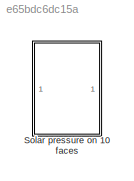
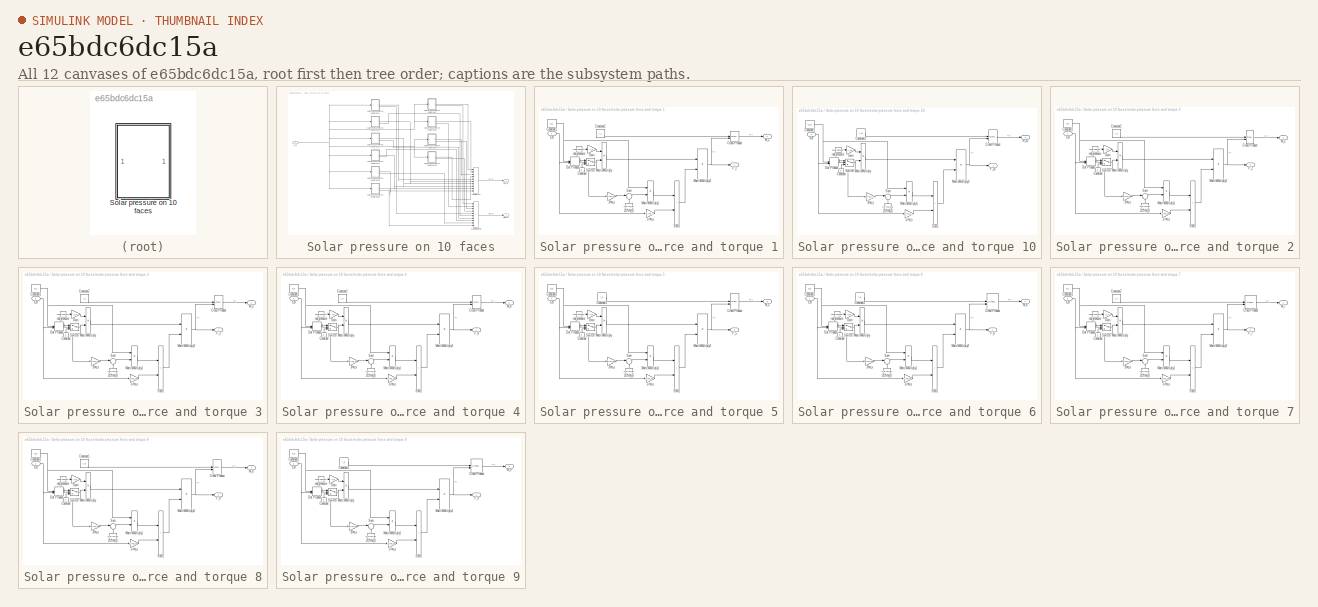
[diagram: thumbnail index - all 12 canvases of the model, root first then tree order]
MODEL slx_e65bdc6dc15a
KIND model
CONFIG AbsTol = auto
CONFIG EnableMultiTasking = off
CONFIG FixedStep = auto
CONFIG MaxStep = auto
CONFIG MinStep = auto
CONFIG RelTol = 1e-3
CONFIG SampleTimeConstraint = Unconstrained
CONFIG SolverName = VariableStepAuto
CONFIG StartTime = 0.0
CONFIG StopTime = 10.0
BLOCK [SubSystem] Solar pressure on 10 faces
BLOCK [Outport] Solar pressure on 10 faces/Ftot_SP
BLOCK [Outport] Solar pressure on 10 faces/Mtot_SP
  Port = 2
BLOCK [Inport] Solar pressure on 10 faces/S_B
BLOCK [Sum] Solar pressure on 10 faces/Sum of forces
  IconShape = rectangular
  Inputs = ++++++++++
BLOCK [Sum] Solar pressure on 10 faces/Sum of moments
  IconShape = rectangular
  Inputs = ++++++++++
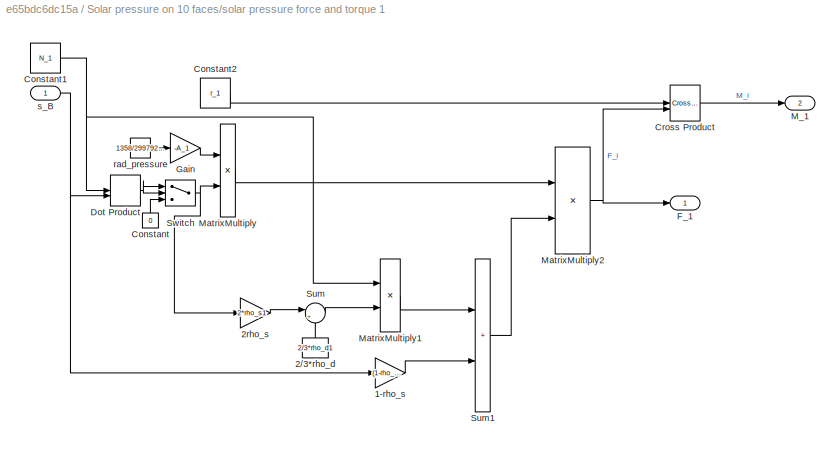
BLOCK [SubSystem] Solar pressure on 10 faces/solar pressure force and torque 1
BLOCK [Gain] Solar pressure on 10 faces/solar pressure force and torque 1/1-rho_s
  Gain = (1-rho_s1)
BLOCK [Constant] Solar pressure on 10 faces/solar pressure force and torque 1/2//3*rho_d
  NameLocation = right
  Value = 2/3*rho_d1
BLOCK [Gain] Solar pressure on 10 faces/solar pressure force and torque 1/2rho_s
  Gain = 2*rho_s1
BLOCK [Constant] Solar pressure on 10 faces/solar pressure force and torque 1/Constant
  NameLocation = right
  Value = 0
BLOCK [Constant] Solar pressure on 10 faces/solar pressure force and torque 1/Constant1
  Value = N_1
BLOCK [Constant] Solar pressure on 10 faces/solar pressure force and torque 1/Constant2
  Value = r_1
BLOCK [Reference] Solar pressure on 10 faces/solar pressure force and torque 1/Cross Product  REF=matrix_library/Cross Product
  LibrarySourceBlock = simulink/Matrix\nOperations/Cross Product
  SourceBlock = matrix_library/Cross Product
  SourceType = CrossProduct
BLOCK [DotProduct] Solar pressure on 10 faces/solar pressure force and torque 1/Dot Product
  OutDataTypeStr = Inherit: Inherit via internal rule
BLOCK [Outport] Solar pressure on 10 faces/solar pressure force and torque 1/F_1
BLOCK [Gain] Solar pressure on 10 faces/solar pressure force and torque 1/Gain
  Gain = -A_1
BLOCK [Outport] Solar pressure on 10 faces/solar pressure force and torque 1/M_1
  Port = 2
BLOCK [Product] Solar pressure on 10 faces/solar pressure force and torque 1/MatrixMultiply
BLOCK [Product] Solar pressure on 10 faces/solar pressure force and torque 1/MatrixMultiply1
BLOCK [Product] Solar pressure on 10 faces/solar pressure force and torque 1/MatrixMultiply2
BLOCK [Sum] Solar pressure on 10 faces/solar pressure force and torque 1/Sum
  Inputs = |++
BLOCK [Sum] Solar pressure on 10 faces/solar pressure force and torque 1/Sum1
  IconShape = rectangular
BLOCK [Switch] Solar pressure on 10 faces/solar pressure force and torque 1/Switch
  Criteria = u2 > Threshold
  InputSameDT = off
  SaturateOnIntegerOverflow = off
BLOCK [Constant] Solar pressure on 10 faces/solar pressure force and torque 1/rad_pressure
  Value = 1358/299792458
BLOCK [Inport] Solar pressure on 10 faces/solar pressure force and torque 1/s_B
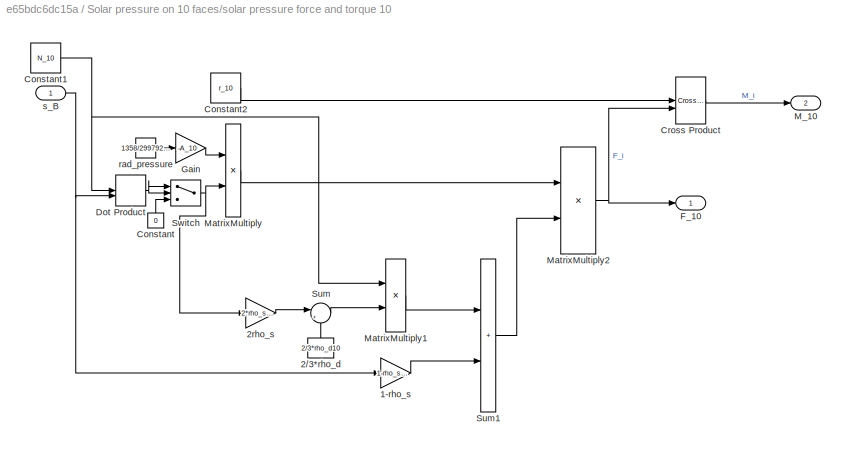
BLOCK [SubSystem] Solar pressure on 10 faces/solar pressure force and torque 10
BLOCK [Gain] Solar pressure on 10 faces/solar pressure force and torque 10/1-rho_s
  Gain = 1-rho_s10
BLOCK [Constant] Solar pressure on 10 faces/solar pressure force and torque 10/2//3*rho_d
  NameLocation = right
  Value = 2/3*rho_d10
BLOCK [Gain] Solar pressure on 10 faces/solar pressure force and torque 10/2rho_s
  Gain = 2*rho_s10
BLOCK [Constant] Solar pressure on 10 faces/solar pressure force and torque 10/Constant
  NameLocation = right
  Value = 0
BLOCK [Constant] Solar pressure on 10 faces/solar pressure force and torque 10/Constant1
  Value = N_10
BLOCK [Constant] Solar pressure on 10 faces/solar pressure force and torque 10/Constant2
  Value = r_10
BLOCK [Reference] Solar pressure on 10 faces/solar pressure force and torque 10/Cross Product  REF=matrix_library/Cross Product
  LibrarySourceBlock = simulink/Matrix\nOperations/Cross Product
  SourceBlock = matrix_library/Cross Product
  SourceType = CrossProduct
BLOCK [DotProduct] Solar pressure on 10 faces/solar pressure force and torque 10/Dot Product
  OutDataTypeStr = Inherit: Inherit via internal rule
BLOCK [Outport] Solar pressure on 10 faces/solar pressure force and torque 10/F_10
BLOCK [Gain] Solar pressure on 10 faces/solar pressure force and torque 10/Gain
  Gain = -A_10
BLOCK [Outport] Solar pressure on 10 faces/solar pressure force and torque 10/M_10
  Port = 2
BLOCK [Product] Solar pressure on 10 faces/solar pressure force and torque 10/MatrixMultiply
BLOCK [Product] Solar pressure on 10 faces/solar pressure force and torque 10/MatrixMultiply1
BLOCK [Product] Solar pressure on 10 faces/solar pressure force and torque 10/MatrixMultiply2
BLOCK [Sum] Solar pressure on 10 faces/solar pressure force and torque 10/Sum
  Inputs = |++
BLOCK [Sum] Solar pressure on 10 faces/solar pressure force and torque 10/Sum1
  IconShape = rectangular
BLOCK [Switch] Solar pressure on 10 faces/solar pressure force and torque 10/Switch
  Criteria = u2 > Threshold
  InputSameDT = off
  SaturateOnIntegerOverflow = off
BLOCK [Constant] Solar pressure on 10 faces/solar pressure force and torque 10/rad_pressure
  Value = 1358/299792458
BLOCK [Inport] Solar pressure on 10 faces/solar pressure force and torque 10/s_B
BLOCK [SubSystem] Solar pressure on 10 faces/solar pressure force and torque 2
BLOCK [Gain] Solar pressure on 10 faces/solar pressure force and torque 2/1-rho_s
  Gain = 1-rho_s2
BLOCK [Constant] Solar pressure on 10 faces/solar pressure force and torque 2/2//3*rho_d
  NameLocation = right
  Value = 2/3*rho_d2
BLOCK [Gain] Solar pressure on 10 faces/solar pressure force and torque 2/2rho_s
  Gain = 2*rho_s2
BLOCK [Constant] Solar pressure on 10 faces/solar pressure force and torque 2/Constant
  NameLocation = right
  Value = 0
BLOCK [Constant] Solar pressure on 10 faces/solar pressure force and torque 2/Constant1
  Value = N_2
BLOCK [Constant] Solar pressure on 10 faces/solar pressure force and torque 2/Constant2
  Value = r_2
BLOCK [Reference] Solar pressure on 10 faces/solar pressure force and torque 2/Cross Product  REF=matrix_library/Cross Product
  LibrarySourceBlock = simulink/Matrix\nOperations/Cross Product
  SourceBlock = matrix_library/Cross Product
  SourceType = CrossProduct
BLOCK [DotProduct] Solar pressure on 10 faces/solar pressure force and torque 2/Dot Product
  OutDataTypeStr = Inherit: Inherit via internal rule
BLOCK [Outport] Solar pressure on 10 faces/solar pressure force and torque 2/F_2
BLOCK [Gain] Solar pressure on 10 faces/solar pressure force and torque 2/Gain
  Gain = -A_2
BLOCK [Outport] Solar pressure on 10 faces/solar pressure force and torque 2/M_2
  Port = 2
BLOCK [Product] Solar pressure on 10 faces/solar pressure force and torque 2/MatrixMultiply
BLOCK [Product] Solar pressure on 10 faces/solar pressure force and torque 2/MatrixMultiply1
BLOCK [Product] Solar pressure on 10 faces/solar pressure force and torque 2/MatrixMultiply2
BLOCK [Sum] Solar pressure on 10 faces/solar pressure force and torque 2/Sum
  Inputs = |++
BLOCK [Sum] Solar pressure on 10 faces/solar pressure force and torque 2/Sum1
  IconShape = rectangular
BLOCK [Switch] Solar pressure on 10 faces/solar pressure force and torque 2/Switch
  Criteria = u2 > Threshold
  InputSameDT = off
  SaturateOnIntegerOverflow = off
BLOCK [Constant] Solar pressure on 10 faces/solar pressure force and torque 2/rad_pressure
  Value = 1358/299792458
BLOCK [Inport] Solar pressure on 10 faces/solar pressure force and torque 2/s_B
BLOCK [SubSystem] Solar pressure on 10 faces/solar pressure force and torque 3
BLOCK [Gain] Solar pressure on 10 faces/solar pressure force and torque 3/1-rho_s
  Gain = 1-rho_s3
BLOCK [Constant] Solar pressure on 10 faces/solar pressure force and torque 3/2//3*rho_d
  NameLocation = right
  Value = 2/3*rho_d3
BLOCK [Gain] Solar pressure on 10 faces/solar pressure force and torque 3/2rho_s
  Gain = 2*rho_s3
BLOCK [Constant] Solar pressure on 10 faces/solar pressure force and torque 3/Constant
  NameLocation = right
  Value = 0
BLOCK [Constant] Solar pressure on 10 faces/solar pressure force and torque 3/Constant1
  Value = N_3
BLOCK [Constant] Solar pressure on 10 faces/solar pressure force and torque 3/Constant2
  Value = r_3
BLOCK [Reference] Solar pressure on 10 faces/solar pressure force and torque 3/Cross Product  REF=matrix_library/Cross Product
  LibrarySourceBlock = simulink/Matrix\nOperations/Cross Product
  SourceBlock = matrix_library/Cross Product
  SourceType = CrossProduct
BLOCK [DotProduct] Solar pressure on 10 faces/solar pressure force and torque 3/Dot Product
  OutDataTypeStr = Inherit: Inherit via internal rule
BLOCK [Outport] Solar pressure on 10 faces/solar pressure force and torque 3/F_3
BLOCK [Gain] Solar pressure on 10 faces/solar pressure force and torque 3/Gain
  Gain = -A_3
BLOCK [Outport] Solar pressure on 10 faces/solar pressure force and torque 3/M_3
  Port = 2
BLOCK [Product] Solar pressure on 10 faces/solar pressure force and torque 3/MatrixMultiply
BLOCK [Product] Solar pressure on 10 faces/solar pressure force and torque 3/MatrixMultiply1
BLOCK [Product] Solar pressure on 10 faces/solar pressure force and torque 3/MatrixMultiply2
BLOCK [Sum] Solar pressure on 10 faces/solar pressure force and torque 3/Sum
  Inputs = |++
BLOCK [Sum] Solar pressure on 10 faces/solar pressure force and torque 3/Sum1
  IconShape = rectangular
BLOCK [Switch] Solar pressure on 10 faces/solar pressure force and torque 3/Switch
  Criteria = u2 > Threshold
  InputSameDT = off
  SaturateOnIntegerOverflow = off
BLOCK [Constant] Solar pressure on 10 faces/solar pressure force and torque 3/rad_pressure
  Value = 1358/299792458
BLOCK [Inport] Solar pressure on 10 faces/solar pressure force and torque 3/s_B
BLOCK [SubSystem] Solar pressure on 10 faces/solar pressure force and torque 4
BLOCK [Gain] Solar pressure on 10 faces/solar pressure force and torque 4/1-rho_s
  Gain = 1-rho_s4
BLOCK [Constant] Solar pressure on 10 faces/solar pressure force and torque 4/2//3*rho_d
  NameLocation = right
  Value = 2/3*rho_d4
BLOCK [Gain] Solar pressure on 10 faces/solar pressure force and torque 4/2rho_s
  Gain = 2*rho_s4
BLOCK [Constant] Solar pressure on 10 faces/solar pressure force and torque 4/Constant
  NameLocation = right
  Value = 0
BLOCK [Constant] Solar pressure on 10 faces/solar pressure force and torque 4/Constant1
  Value = N_4
BLOCK [Constant] Solar pressure on 10 faces/solar pressure force and torque 4/Constant2
  Value = r_4
BLOCK [Reference] Solar pressure on 10 faces/solar pressure force and torque 4/Cross Product  REF=matrix_library/Cross Product
  LibrarySourceBlock = simulink/Matrix\nOperations/Cross Product
  SourceBlock = matrix_library/Cross Product
  SourceType = CrossProduct
BLOCK [DotProduct] Solar pressure on 10 faces/solar pressure force and torque 4/Dot Product
  OutDataTypeStr = Inherit: Inherit via internal rule
BLOCK [Outport] Solar pressure on 10 faces/solar pressure force and torque 4/F_4
BLOCK [Gain] Solar pressure on 10 faces/solar pressure force and torque 4/Gain
  Gain = -A_4
BLOCK [Outport] Solar pressure on 10 faces/solar pressure force and torque 4/M_4
  Port = 2
BLOCK [Product] Solar pressure on 10 faces/solar pressure force and torque 4/MatrixMultiply
BLOCK [Product] Solar pressure on 10 faces/solar pressure force and torque 4/MatrixMultiply1
BLOCK [Product] Solar pressure on 10 faces/solar pressure force and torque 4/MatrixMultiply2
BLOCK [Sum] Solar pressure on 10 faces/solar pressure force and torque 4/Sum
  Inputs = |++
BLOCK [Sum] Solar pressure on 10 faces/solar pressure force and torque 4/Sum1
  IconShape = rectangular
BLOCK [Switch] Solar pressure on 10 faces/solar pressure force and torque 4/Switch
  Criteria = u2 > Threshold
  InputSameDT = off
  SaturateOnIntegerOverflow = off
BLOCK [Constant] Solar pressure on 10 faces/solar pressure force and torque 4/rad_pressure
  Value = 1358/299792458
BLOCK [Inport] Solar pressure on 10 faces/solar pressure force and torque 4/s_B
BLOCK [SubSystem] Solar pressure on 10 faces/solar pressure force and torque 5
BLOCK [Gain] Solar pressure on 10 faces/solar pressure force and torque 5/1-rho_s
  Gain = 1-rho_s5
BLOCK [Constant] Solar pressure on 10 faces/solar pressure force and torque 5/2//3*rho_d
  NameLocation = right
  Value = 2/3*rho_d5
BLOCK [Gain] Solar pressure on 10 faces/solar pressure force and torque 5/2rho_s
  Gain = 2*rho_s5
BLOCK [Constant] Solar pressure on 10 faces/solar pressure force and torque 5/Constant
  NameLocation = right
  Value = 0
BLOCK [Constant] Solar pressure on 10 faces/solar pressure force and torque 5/Constant1
  Value = r_5
BLOCK [Constant] Solar pressure on 10 faces/solar pressure force and torque 5/Constant2
  Value = N_5
BLOCK [Reference] Solar pressure on 10 faces/solar pressure force and torque 5/Cross Product  REF=matrix_library/Cross Product
  LibrarySourceBlock = simulink/Matrix\nOperations/Cross Product
  SourceBlock = matrix_library/Cross Product
  SourceType = CrossProduct
BLOCK [DotProduct] Solar pressure on 10 faces/solar pressure force and torque 5/Dot Product
  OutDataTypeStr = Inherit: Inherit via internal rule
BLOCK [Outport] Solar pressure on 10 faces/solar pressure force and torque 5/F_5
BLOCK [Gain] Solar pressure on 10 faces/solar pressure force and torque 5/Gain
  Gain = -A_5
BLOCK [Outport] Solar pressure on 10 faces/solar pressure force and torque 5/M_5
  Port = 2
BLOCK [Product] Solar pressure on 10 faces/solar pressure force and torque 5/MatrixMultiply
BLOCK [Product] Solar pressure on 10 faces/solar pressure force and torque 5/MatrixMultiply1
BLOCK [Product] Solar pressure on 10 faces/solar pressure force and torque 5/MatrixMultiply2
BLOCK [Sum] Solar pressure on 10 faces/solar pressure force and torque 5/Sum
  Inputs = |++
BLOCK [Sum] Solar pressure on 10 faces/solar pressure force and torque 5/Sum1
  IconShape = rectangular
BLOCK [Switch] Solar pressure on 10 faces/solar pressure force and torque 5/Switch
  Criteria = u2 > Threshold
  InputSameDT = off
  SaturateOnIntegerOverflow = off
BLOCK [Constant] Solar pressure on 10 faces/solar pressure force and torque 5/rad_pressure
  Value = 1358/299792458
BLOCK [Inport] Solar pressure on 10 faces/solar pressure force and torque 5/s_B
BLOCK [SubSystem] Solar pressure on 10 faces/solar pressure force and torque 6
BLOCK [Gain] Solar pressure on 10 faces/solar pressure force and torque 6/1-rho_s
  Gain = 1-rho_s6
BLOCK [Constant] Solar pressure on 10 faces/solar pressure force and torque 6/2//3*rho_d
  NameLocation = right
  Value = 2/3*rho_d6
BLOCK [Gain] Solar pressure on 10 faces/solar pressure force and torque 6/2rho_s
  Gain = 2*rho_s6
BLOCK [Constant] Solar pressure on 10 faces/solar pressure force and torque 6/Constant
  NameLocation = right
  Value = 0
BLOCK [Constant] Solar pressure on 10 faces/solar pressure force and torque 6/Constant1
  Value = N_6
BLOCK [Constant] Solar pressure on 10 faces/solar pressure force and torque 6/Constant2
  Value = r_6
BLOCK [Reference] Solar pressure on 10 faces/solar pressure force and torque 6/Cross Product  REF=matrix_library/Cross Product
  LibrarySourceBlock = simulink/Matrix\nOperations/Cross Product
  SourceBlock = matrix_library/Cross Product
  SourceType = CrossProduct
BLOCK [DotProduct] Solar pressure on 10 faces/solar pressure force and torque 6/Dot Product
  OutDataTypeStr = Inherit: Inherit via internal rule
BLOCK [Outport] Solar pressure on 10 faces/solar pressure force and torque 6/F_6
BLOCK [Gain] Solar pressure on 10 faces/solar pressure force and torque 6/Gain
  Gain = -A_6
BLOCK [Outport] Solar pressure on 10 faces/solar pressure force and torque 6/M_6
  Port = 2
BLOCK [Product] Solar pressure on 10 faces/solar pressure force and torque 6/MatrixMultiply
BLOCK [Product] Solar pressure on 10 faces/solar pressure force and torque 6/MatrixMultiply1
BLOCK [Product] Solar pressure on 10 faces/solar pressure force and torque 6/MatrixMultiply2
BLOCK [Sum] Solar pressure on 10 faces/solar pressure force and torque 6/Sum
  Inputs = |++
BLOCK [Sum] Solar pressure on 10 faces/solar pressure force and torque 6/Sum1
  IconShape = rectangular
BLOCK [Switch] Solar pressure on 10 faces/solar pressure force and torque 6/Switch
  Criteria = u2 > Threshold
  InputSameDT = off
  SaturateOnIntegerOverflow = off
BLOCK [Constant] Solar pressure on 10 faces/solar pressure force and torque 6/rad_pressure
  Value = 1358/299792458
BLOCK [Inport] Solar pressure on 10 faces/solar pressure force and torque 6/s_B
BLOCK [SubSystem] Solar pressure on 10 faces/solar pressure force and torque 7
BLOCK [Gain] Solar pressure on 10 faces/solar pressure force and torque 7/1-rho_s
  Gain = 1-rho_s7
BLOCK [Constant] Solar pressure on 10 faces/solar pressure force and torque 7/2//3*rho_d
  NameLocation = right
  Value = 2/3*rho_d7
BLOCK [Gain] Solar pressure on 10 faces/solar pressure force and torque 7/2rho_s
  Gain = 2*rho_s7
BLOCK [Constant] Solar pressure on 10 faces/solar pressure force and torque 7/Constant
  NameLocation = right
  Value = 0
BLOCK [Constant] Solar pressure on 10 faces/solar pressure force and torque 7/Constant1
  Value = N_7
BLOCK [Constant] Solar pressure on 10 faces/solar pressure force and torque 7/Constant2
  Value = r_7
BLOCK [Reference] Solar pressure on 10 faces/solar pressure force and torque 7/Cross Product  REF=matrix_library/Cross Product
  LibrarySourceBlock = simulink/Matrix\nOperations/Cross Product
  SourceBlock = matrix_library/Cross Product
  SourceType = CrossProduct
BLOCK [DotProduct] Solar pressure on 10 faces/solar pressure force and torque 7/Dot Product
  OutDataTypeStr = Inherit: Inherit via internal rule
BLOCK [Outport] Solar pressure on 10 faces/solar pressure force and torque 7/F_7
BLOCK [Gain] Solar pressure on 10 faces/solar pressure force and torque 7/Gain
  Gain = -A_7
BLOCK [Outport] Solar pressure on 10 faces/solar pressure force and torque 7/M_7
  Port = 2
BLOCK [Product] Solar pressure on 10 faces/solar pressure force and torque 7/MatrixMultiply
BLOCK [Product] Solar pressure on 10 faces/solar pressure force and torque 7/MatrixMultiply1
BLOCK [Product] Solar pressure on 10 faces/solar pressure force and torque 7/MatrixMultiply2
BLOCK [Sum] Solar pressure on 10 faces/solar pressure force and torque 7/Sum
  Inputs = |++
BLOCK [Sum] Solar pressure on 10 faces/solar pressure force and torque 7/Sum1
  IconShape = rectangular
BLOCK [Switch] Solar pressure on 10 faces/solar pressure force and torque 7/Switch
  Criteria = u2 > Threshold
  InputSameDT = off
  SaturateOnIntegerOverflow = off
BLOCK [Constant] Solar pressure on 10 faces/solar pressure force and torque 7/rad_pressure
  Value = 1358/299792458
BLOCK [Inport] Solar pressure on 10 faces/solar pressure force and torque 7/s_B
BLOCK [SubSystem] Solar pressure on 10 faces/solar pressure force and torque 8
BLOCK [Gain] Solar pressure on 10 faces/solar pressure force and torque 8/1-rho_s
  Gain = 1-rho_s8
BLOCK [Constant] Solar pressure on 10 faces/solar pressure force and torque 8/2//3*rho_d
  NameLocation = right
  Value = 2/3*rho_d8
BLOCK [Gain] Solar pressure on 10 faces/solar pressure force and torque 8/2rho_s
  Gain = 2*rho_s8
BLOCK [Constant] Solar pressure on 10 faces/solar pressure force and torque 8/Constant
  NameLocation = right
  Value = 0
BLOCK [Constant] Solar pressure on 10 faces/solar pressure force and torque 8/Constant1
  Value = r_8
BLOCK [Constant] Solar pressure on 10 faces/solar pressure force and torque 8/Constant2
  Value = N_8
BLOCK [Reference] Solar pressure on 10 faces/solar pressure force and torque 8/Cross Product  REF=matrix_library/Cross Product
  LibrarySourceBlock = simulink/Matrix\nOperations/Cross Product
  SourceBlock = matrix_library/Cross Product
  SourceType = CrossProduct
BLOCK [DotProduct] Solar pressure on 10 faces/solar pressure force and torque 8/Dot Product
  OutDataTypeStr = Inherit: Inherit via internal rule
BLOCK [Outport] Solar pressure on 10 faces/solar pressure force and torque 8/F_8
BLOCK [Gain] Solar pressure on 10 faces/solar pressure force and torque 8/Gain
  Gain = -A_8
BLOCK [Outport] Solar pressure on 10 faces/solar pressure force and torque 8/M_8
  Port = 2
BLOCK [Product] Solar pressure on 10 faces/solar pressure force and torque 8/MatrixMultiply
BLOCK [Product] Solar pressure on 10 faces/solar pressure force and torque 8/MatrixMultiply1
BLOCK [Product] Solar pressure on 10 faces/solar pressure force and torque 8/MatrixMultiply2
BLOCK [Sum] Solar pressure on 10 faces/solar pressure force and torque 8/Sum
  Inputs = |++
BLOCK [Sum] Solar pressure on 10 faces/solar pressure force and torque 8/Sum1
  IconShape = rectangular
BLOCK [Switch] Solar pressure on 10 faces/solar pressure force and torque 8/Switch
  Criteria = u2 > Threshold
  InputSameDT = off
  SaturateOnIntegerOverflow = off
BLOCK [Constant] Solar pressure on 10 faces/solar pressure force and torque 8/rad_pressure
  Value = 1358/299792458
BLOCK [Inport] Solar pressure on 10 faces/solar pressure force and torque 8/s_B
BLOCK [SubSystem] Solar pressure on 10 faces/solar pressure force and torque 9
BLOCK [Gain] Solar pressure on 10 faces/solar pressure force and torque 9/1-rho_s
  Gain = 1-rho_s9
BLOCK [Constant] Solar pressure on 10 faces/solar pressure force and torque 9/2//3*rho_d
  NameLocation = right
  Value = 2/3*rho_d9
BLOCK [Gain] Solar pressure on 10 faces/solar pressure force and torque 9/2rho_s
  Gain = 2*rho_s9
BLOCK [Constant] Solar pressure on 10 faces/solar pressure force and torque 9/Constant
  NameLocation = right
  Value = 0
BLOCK [Constant] Solar pressure on 10 faces/solar pressure force and torque 9/Constant1
  Value = r_9
BLOCK [Constant] Solar pressure on 10 faces/solar pressure force and torque 9/Constant2
  Value = N_9
BLOCK [Reference] Solar pressure on 10 faces/solar pressure force and torque 9/Cross Product  REF=matrix_library/Cross Product
  LibrarySourceBlock = simulink/Matrix\nOperations/Cross Product
  SourceBlock = matrix_library/Cross Product
  SourceType = CrossProduct
BLOCK [DotProduct] Solar pressure on 10 faces/solar pressure force and torque 9/Dot Product
  OutDataTypeStr = Inherit: Inherit via internal rule
BLOCK [Outport] Solar pressure on 10 faces/solar pressure force and torque 9/F_9
BLOCK [Gain] Solar pressure on 10 faces/solar pressure force and torque 9/Gain
  Gain = -A_9
BLOCK [Outport] Solar pressure on 10 faces/solar pressure force and torque 9/M_9
  Port = 2
BLOCK [Product] Solar pressure on 10 faces/solar pressure force and torque 9/MatrixMultiply
BLOCK [Product] Solar pressure on 10 faces/solar pressure force and torque 9/MatrixMultiply1
BLOCK [Product] Solar pressure on 10 faces/solar pressure force and torque 9/MatrixMultiply2
BLOCK [Sum] Solar pressure on 10 faces/solar pressure force and torque 9/Sum
  Inputs = |++
BLOCK [Sum] Solar pressure on 10 faces/solar pressure force and torque 9/Sum1
  IconShape = rectangular
BLOCK [Switch] Solar pressure on 10 faces/solar pressure force and torque 9/Switch
  Criteria = u2 > Threshold
  InputSameDT = off
  SaturateOnIntegerOverflow = off
BLOCK [Constant] Solar pressure on 10 faces/solar pressure force and torque 9/rad_pressure
  Value = 1358/299792458
BLOCK [Inport] Solar pressure on 10 faces/solar pressure force and torque 9/s_B
NET Solar pressure on 10 faces/S_B:1 -> Solar pressure on 10 faces/solar pressure force and torque 10:1, Solar pressure on 10 faces/solar pressure force and torque 1:1, Solar pressure on 10 faces/solar pressure force and torque 2:1, Solar pressure on 10 faces/solar pressure force and torque 3:1, Solar pressure on 10 faces/solar pressure force and torque 4:1, Solar pressure on 10 faces/solar pressure force and torque 5:1, Solar pressure on 10 faces/solar pressure force and torque 6:1, Solar pressure on 10 faces/solar pressure force and torque 7:1, Solar pressure on 10 faces/solar pressure force and torque 8:1, Solar pressure on 10 faces/solar pressure force and torque 9:1
LINE Solar pressure on 10 faces/Sum of forces:1 -> Solar pressure on 10 faces/Ftot_SP:1
LINE Solar pressure on 10 faces/Sum of moments:1 -> Solar pressure on 10 faces/Mtot_SP:1
LINE Solar pressure on 10 faces/solar pressure force and torque 1/1-rho_s:1 -> Solar pressure on 10 faces/solar pressure force and torque 1/Sum1:2
LINE Solar pressure on 10 faces/solar pressure force and torque 1/2//3*rho_d:1 -> Solar pressure on 10 faces/solar pressure force and torque 1/Sum:2
LINE Solar pressure on 10 faces/solar pressure force and torque 1/2rho_s:1 -> Solar pressure on 10 faces/solar pressure force and torque 1/Sum:1
NET Solar pressure on 10 faces/solar pressure force and torque 1/Constant1:1 -> Solar pressure on 10 faces/solar pressure force and torque 1/Dot Product:1, Solar pressure on 10 faces/solar pressure force and torque 1/MatrixMultiply1:1
LINE Solar pressure on 10 faces/solar pressure force and torque 1/Constant2:1 -> Solar pressure on 10 faces/solar pressure force and torque 1/Cross Product:1
LINE Solar pressure on 10 faces/solar pressure force and torque 1/Constant:1 -> Solar pressure on 10 faces/solar pressure force and torque 1/Switch:3
LINE Solar pressure on 10 faces/solar pressure force and torque 1/Cross Product:1 -> Solar pressure on 10 faces/solar pressure force and torque 1/M_1:1
NET Solar pressure on 10 faces/solar pressure force and torque 1/Dot Product:1 -> Solar pressure on 10 faces/solar pressure force and torque 1/Switch:1, Solar pressure on 10 faces/solar pressure force and torque 1/Switch:2
LINE Solar pressure on 10 faces/solar pressure force and torque 1/Gain:1 -> Solar pressure on 10 faces/solar pressure force and torque 1/MatrixMultiply:1
LINE Solar pressure on 10 faces/solar pressure force and torque 1/MatrixMultiply1:1 -> Solar pressure on 10 faces/solar pressure force and torque 1/Sum1:1
NET Solar pressure on 10 faces/solar pressure force and torque 1/MatrixMultiply2:1 -> Solar pressure on 10 faces/solar pressure force and torque 1/Cross Product:2, Solar pressure on 10 faces/solar pressure force and torque 1/F_1:1
LINE Solar pressure on 10 faces/solar pressure force and torque 1/MatrixMultiply:1 -> Solar pressure on 10 faces/solar pressure force and torque 1/MatrixMultiply2:1
LINE Solar pressure on 10 faces/solar pressure force and torque 1/Sum1:1 -> Solar pressure on 10 faces/solar pressure force and torque 1/MatrixMultiply2:2
LINE Solar pressure on 10 faces/solar pressure force and torque 1/Sum:1 -> Solar pressure on 10 faces/solar pressure force and torque 1/MatrixMultiply1:2
NET Solar pressure on 10 faces/solar pressure force and torque 1/Switch:1 -> Solar pressure on 10 faces/solar pressure force and torque 1/2rho_s:1, Solar pressure on 10 faces/solar pressure force and torque 1/MatrixMultiply:2
LINE Solar pressure on 10 faces/solar pressure force and torque 1/rad_pressure:1 -> Solar pressure on 10 faces/solar pressure force and torque 1/Gain:1
NET Solar pressure on 10 faces/solar pressure force and torque 1/s_B:1 -> Solar pressure on 10 faces/solar pressure force and torque 1/1-rho_s:1, Solar pressure on 10 faces/solar pressure force and torque 1/Dot Product:2
LINE Solar pressure on 10 faces/solar pressure force and torque 10/1-rho_s:1 -> Solar pressure on 10 faces/solar pressure force and torque 10/Sum1:2
LINE Solar pressure on 10 faces/solar pressure force and torque 10/2//3*rho_d:1 -> Solar pressure on 10 faces/solar pressure force and torque 10/Sum:2
LINE Solar pressure on 10 faces/solar pressure force and torque 10/2rho_s:1 -> Solar pressure on 10 faces/solar pressure force and torque 10/Sum:1
NET Solar pressure on 10 faces/solar pressure force and torque 10/Constant1:1 -> Solar pressure on 10 faces/solar pressure force and torque 10/Dot Product:1, Solar pressure on 10 faces/solar pressure force and torque 10/MatrixMultiply1:1
LINE Solar pressure on 10 faces/solar pressure force and torque 10/Constant2:1 -> Solar pressure on 10 faces/solar pressure force and torque 10/Cross Product:1
LINE Solar pressure on 10 faces/solar pressure force and torque 10/Constant:1 -> Solar pressure on 10 faces/solar pressure force and torque 10/Switch:3
LINE Solar pressure on 10 faces/solar pressure force and torque 10/Cross Product:1 -> Solar pressure on 10 faces/solar pressure force and torque 10/M_10:1
NET Solar pressure on 10 faces/solar pressure force and torque 10/Dot Product:1 -> Solar pressure on 10 faces/solar pressure force and torque 10/Switch:1, Solar pressure on 10 faces/solar pressure force and torque 10/Switch:2
LINE Solar pressure on 10 faces/solar pressure force and torque 10/Gain:1 -> Solar pressure on 10 faces/solar pressure force and torque 10/MatrixMultiply:1
LINE Solar pressure on 10 faces/solar pressure force and torque 10/MatrixMultiply1:1 -> Solar pressure on 10 faces/solar pressure force and torque 10/Sum1:1
NET Solar pressure on 10 faces/solar pressure force and torque 10/MatrixMultiply2:1 -> Solar pressure on 10 faces/solar pressure force and torque 10/Cross Product:2, Solar pressure on 10 faces/solar pressure force and torque 10/F_10:1
LINE Solar pressure on 10 faces/solar pressure force and torque 10/MatrixMultiply:1 -> Solar pressure on 10 faces/solar pressure force and torque 10/MatrixMultiply2:1
LINE Solar pressure on 10 faces/solar pressure force and torque 10/Sum1:1 -> Solar pressure on 10 faces/solar pressure force and torque 10/MatrixMultiply2:2
LINE Solar pressure on 10 faces/solar pressure force and torque 10/Sum:1 -> Solar pressure on 10 faces/solar pressure force and torque 10/MatrixMultiply1:2
NET Solar pressure on 10 faces/solar pressure force and torque 10/Switch:1 -> Solar pressure on 10 faces/solar pressure force and torque 10/2rho_s:1, Solar pressure on 10 faces/solar pressure force and torque 10/MatrixMultiply:2
LINE Solar pressure on 10 faces/solar pressure force and torque 10/rad_pressure:1 -> Solar pressure on 10 faces/solar pressure force and torque 10/Gain:1
NET Solar pressure on 10 faces/solar pressure force and torque 10/s_B:1 -> Solar pressure on 10 faces/solar pressure force and torque 10/1-rho_s:1, Solar pressure on 10 faces/solar pressure force and torque 10/Dot Product:2
LINE Solar pressure on 10 faces/solar pressure force and torque 10:1 -> Solar pressure on 10 faces/Sum of forces:4
LINE Solar pressure on 10 faces/solar pressure force and torque 10:2 -> Solar pressure on 10 faces/Sum of moments:4
LINE Solar pressure on 10 faces/solar pressure force and torque 1:1 -> Solar pressure on 10 faces/Sum of forces:5
LINE Solar pressure on 10 faces/solar pressure force and torque 1:2 -> Solar pressure on 10 faces/Sum of moments:5
LINE Solar pressure on 10 faces/solar pressure force and torque 2/1-rho_s:1 -> Solar pressure on 10 faces/solar pressure force and torque 2/Sum1:2
LINE Solar pressure on 10 faces/solar pressure force and torque 2/2//3*rho_d:1 -> Solar pressure on 10 faces/solar pressure force and torque 2/Sum:2
LINE Solar pressure on 10 faces/solar pressure force and torque 2/2rho_s:1 -> Solar pressure on 10 faces/solar pressure force and torque 2/Sum:1
NET Solar pressure on 10 faces/solar pressure force and torque 2/Constant1:1 -> Solar pressure on 10 faces/solar pressure force and torque 2/Dot Product:1, Solar pressure on 10 faces/solar pressure force and torque 2/MatrixMultiply1:1
LINE Solar pressure on 10 faces/solar pressure force and torque 2/Constant2:1 -> Solar pressure on 10 faces/solar pressure force and torque 2/Cross Product:1
LINE Solar pressure on 10 faces/solar pressure force and torque 2/Constant:1 -> Solar pressure on 10 faces/solar pressure force and torque 2/Switch:3
LINE Solar pressure on 10 faces/solar pressure force and torque 2/Cross Product:1 -> Solar pressure on 10 faces/solar pressure force and torque 2/M_2:1
NET Solar pressure on 10 faces/solar pressure force and torque 2/Dot Product:1 -> Solar pressure on 10 faces/solar pressure force and torque 2/Switch:1, Solar pressure on 10 faces/solar pressure force and torque 2/Switch:2
LINE Solar pressure on 10 faces/solar pressure force and torque 2/Gain:1 -> Solar pressure on 10 faces/solar pressure force and torque 2/MatrixMultiply:1
LINE Solar pressure on 10 faces/solar pressure force and torque 2/MatrixMultiply1:1 -> Solar pressure on 10 faces/solar pressure force and torque 2/Sum1:1
NET Solar pressure on 10 faces/solar pressure force and torque 2/MatrixMultiply2:1 -> Solar pressure on 10 faces/solar pressure force and torque 2/Cross Product:2, Solar pressure on 10 faces/solar pressure force and torque 2/F_2:1
LINE Solar pressure on 10 faces/solar pressure force and torque 2/MatrixMultiply:1 -> Solar pressure on 10 faces/solar pressure force and torque 2/MatrixMultiply2:1
LINE Solar pressure on 10 faces/solar pressure force and torque 2/Sum1:1 -> Solar pressure on 10 faces/solar pressure force and torque 2/MatrixMultiply2:2
LINE Solar pressure on 10 faces/solar pressure force and torque 2/Sum:1 -> Solar pressure on 10 faces/solar pressure force and torque 2/MatrixMultiply1:2
NET Solar pressure on 10 faces/solar pressure force and torque 2/Switch:1 -> Solar pressure on 10 faces/solar pressure force and torque 2/2rho_s:1, Solar pressure on 10 faces/solar pressure force and torque 2/MatrixMultiply:2
LINE Solar pressure on 10 faces/solar pressure force and torque 2/rad_pressure:1 -> Solar pressure on 10 faces/solar pressure force and torque 2/Gain:1
NET Solar pressure on 10 faces/solar pressure force and torque 2/s_B:1 -> Solar pressure on 10 faces/solar pressure force and torque 2/1-rho_s:1, Solar pressure on 10 faces/solar pressure force and torque 2/Dot Product:2
LINE Solar pressure on 10 faces/solar pressure force and torque 2:1 -> Solar pressure on 10 faces/Sum of forces:6
LINE Solar pressure on 10 faces/solar pressure force and torque 2:2 -> Solar pressure on 10 faces/Sum of moments:6
LINE Solar pressure on 10 faces/solar pressure force and torque 3/1-rho_s:1 -> Solar pressure on 10 faces/solar pressure force and torque 3/Sum1:2
LINE Solar pressure on 10 faces/solar pressure force and torque 3/2//3*rho_d:1 -> Solar pressure on 10 faces/solar pressure force and torque 3/Sum:2
LINE Solar pressure on 10 faces/solar pressure force and torque 3/2rho_s:1 -> Solar pressure on 10 faces/solar pressure force and torque 3/Sum:1
NET Solar pressure on 10 faces/solar pressure force and torque 3/Constant1:1 -> Solar pressure on 10 faces/solar pressure force and torque 3/Dot Product:1, Solar pressure on 10 faces/solar pressure force and torque 3/MatrixMultiply1:1
LINE Solar pressure on 10 faces/solar pressure force and torque 3/Constant2:1 -> Solar pressure on 10 faces/solar pressure force and torque 3/Cross Product:1
LINE Solar pressure on 10 faces/solar pressure force and torque 3/Constant:1 -> Solar pressure on 10 faces/solar pressure force and torque 3/Switch:3
LINE Solar pressure on 10 faces/solar pressure force and torque 3/Cross Product:1 -> Solar pressure on 10 faces/solar pressure force and torque 3/M_3:1
NET Solar pressure on 10 faces/solar pressure force and torque 3/Dot Product:1 -> Solar pressure on 10 faces/solar pressure force and torque 3/Switch:1, Solar pressure on 10 faces/solar pressure force and torque 3/Switch:2
LINE Solar pressure on 10 faces/solar pressure force and torque 3/Gain:1 -> Solar pressure on 10 faces/solar pressure force and torque 3/MatrixMultiply:1
LINE Solar pressure on 10 faces/solar pressure force and torque 3/MatrixMultiply1:1 -> Solar pressure on 10 faces/solar pressure force and torque 3/Sum1:1
NET Solar pressure on 10 faces/solar pressure force and torque 3/MatrixMultiply2:1 -> Solar pressure on 10 faces/solar pressure force and torque 3/Cross Product:2, Solar pressure on 10 faces/solar pressure force and torque 3/F_3:1
LINE Solar pressure on 10 faces/solar pressure force and torque 3/MatrixMultiply:1 -> Solar pressure on 10 faces/solar pressure force and torque 3/MatrixMultiply2:1
LINE Solar pressure on 10 faces/solar pressure force and torque 3/Sum1:1 -> Solar pressure on 10 faces/solar pressure force and torque 3/MatrixMultiply2:2
LINE Solar pressure on 10 faces/solar pressure force and torque 3/Sum:1 -> Solar pressure on 10 faces/solar pressure force and torque 3/MatrixMultiply1:2
NET Solar pressure on 10 faces/solar pressure force and torque 3/Switch:1 -> Solar pressure on 10 faces/solar pressure force and torque 3/2rho_s:1, Solar pressure on 10 faces/solar pressure force and torque 3/MatrixMultiply:2
LINE Solar pressure on 10 faces/solar pressure force and torque 3/rad_pressure:1 -> Solar pressure on 10 faces/solar pressure force and torque 3/Gain:1
NET Solar pressure on 10 faces/solar pressure force and torque 3/s_B:1 -> Solar pressure on 10 faces/solar pressure force and torque 3/1-rho_s:1, Solar pressure on 10 faces/solar pressure force and torque 3/Dot Product:2
LINE Solar pressure on 10 faces/solar pressure force and torque 3:1 -> Solar pressure on 10 faces/Sum of forces:7
LINE Solar pressure on 10 faces/solar pressure force and torque 3:2 -> Solar pressure on 10 faces/Sum of moments:7
LINE Solar pressure on 10 faces/solar pressure force and torque 4/1-rho_s:1 -> Solar pressure on 10 faces/solar pressure force and torque 4/Sum1:2
LINE Solar pressure on 10 faces/solar pressure force and torque 4/2//3*rho_d:1 -> Solar pressure on 10 faces/solar pressure force and torque 4/Sum:2
LINE Solar pressure on 10 faces/solar pressure force and torque 4/2rho_s:1 -> Solar pressure on 10 faces/solar pressure force and torque 4/Sum:1
NET Solar pressure on 10 faces/solar pressure force and torque 4/Constant1:1 -> Solar pressure on 10 faces/solar pressure force and torque 4/Dot Product:1, Solar pressure on 10 faces/solar pressure force and torque 4/MatrixMultiply1:1
LINE Solar pressure on 10 faces/solar pressure force and torque 4/Constant2:1 -> Solar pressure on 10 faces/solar pressure force and torque 4/Cross Product:1
LINE Solar pressure on 10 faces/solar pressure force and torque 4/Constant:1 -> Solar pressure on 10 faces/solar pressure force and torque 4/Switch:3
LINE Solar pressure on 10 faces/solar pressure force and torque 4/Cross Product:1 -> Solar pressure on 10 faces/solar pressure force and torque 4/M_4:1
NET Solar pressure on 10 faces/solar pressure force and torque 4/Dot Product:1 -> Solar pressure on 10 faces/solar pressure force and torque 4/Switch:1, Solar pressure on 10 faces/solar pressure force and torque 4/Switch:2
LINE Solar pressure on 10 faces/solar pressure force and torque 4/Gain:1 -> Solar pressure on 10 faces/solar pressure force and torque 4/MatrixMultiply:1
LINE Solar pressure on 10 faces/solar pressure force and torque 4/MatrixMultiply1:1 -> Solar pressure on 10 faces/solar pressure force and torque 4/Sum1:1
NET Solar pressure on 10 faces/solar pressure force and torque 4/MatrixMultiply2:1 -> Solar pressure on 10 faces/solar pressure force and torque 4/Cross Product:2, Solar pressure on 10 faces/solar pressure force and torque 4/F_4:1
LINE Solar pressure on 10 faces/solar pressure force and torque 4/MatrixMultiply:1 -> Solar pressure on 10 faces/solar pressure force and torque 4/MatrixMultiply2:1
LINE Solar pressure on 10 faces/solar pressure force and torque 4/Sum1:1 -> Solar pressure on 10 faces/solar pressure force and torque 4/MatrixMultiply2:2
LINE Solar pressure on 10 faces/solar pressure force and torque 4/Sum:1 -> Solar pressure on 10 faces/solar pressure force and torque 4/MatrixMultiply1:2
NET Solar pressure on 10 faces/solar pressure force and torque 4/Switch:1 -> Solar pressure on 10 faces/solar pressure force and torque 4/2rho_s:1, Solar pressure on 10 faces/solar pressure force and torque 4/MatrixMultiply:2
LINE Solar pressure on 10 faces/solar pressure force and torque 4/rad_pressure:1 -> Solar pressure on 10 faces/solar pressure force and torque 4/Gain:1
NET Solar pressure on 10 faces/solar pressure force and torque 4/s_B:1 -> Solar pressure on 10 faces/solar pressure force and torque 4/1-rho_s:1, Solar pressure on 10 faces/solar pressure force and torque 4/Dot Product:2
LINE Solar pressure on 10 faces/solar pressure force and torque 4:1 -> Solar pressure on 10 faces/Sum of forces:8
LINE Solar pressure on 10 faces/solar pressure force and torque 4:2 -> Solar pressure on 10 faces/Sum of moments:8
LINE Solar pressure on 10 faces/solar pressure force and torque 5/1-rho_s:1 -> Solar pressure on 10 faces/solar pressure force and torque 5/Sum1:2
LINE Solar pressure on 10 faces/solar pressure force and torque 5/2//3*rho_d:1 -> Solar pressure on 10 faces/solar pressure force and torque 5/Sum:2
LINE Solar pressure on 10 faces/solar pressure force and torque 5/2rho_s:1 -> Solar pressure on 10 faces/solar pressure force and torque 5/Sum:1
LINE Solar pressure on 10 faces/solar pressure force and torque 5/Constant1:1 -> Solar pressure on 10 faces/solar pressure force and torque 5/Cross Product:1
NET Solar pressure on 10 faces/solar pressure force and torque 5/Constant2:1 -> Solar pressure on 10 faces/solar pressure force and torque 5/Dot Product:1, Solar pressure on 10 faces/solar pressure force and torque 5/MatrixMultiply1:1
LINE Solar pressure on 10 faces/solar pressure force and torque 5/Constant:1 -> Solar pressure on 10 faces/solar pressure force and torque 5/Switch:3
LINE Solar pressure on 10 faces/solar pressure force and torque 5/Cross Product:1 -> Solar pressure on 10 faces/solar pressure force and torque 5/M_5:1
NET Solar pressure on 10 faces/solar pressure force and torque 5/Dot Product:1 -> Solar pressure on 10 faces/solar pressure force and torque 5/Switch:1, Solar pressure on 10 faces/solar pressure force and torque 5/Switch:2
LINE Solar pressure on 10 faces/solar pressure force and torque 5/Gain:1 -> Solar pressure on 10 faces/solar pressure force and torque 5/MatrixMultiply:1
LINE Solar pressure on 10 faces/solar pressure force and torque 5/MatrixMultiply1:1 -> Solar pressure on 10 faces/solar pressure force and torque 5/Sum1:1
NET Solar pressure on 10 faces/solar pressure force and torque 5/MatrixMultiply2:1 -> Solar pressure on 10 faces/solar pressure force and torque 5/Cross Product:2, Solar pressure on 10 faces/solar pressure force and torque 5/F_5:1
LINE Solar pressure on 10 faces/solar pressure force and torque 5/MatrixMultiply:1 -> Solar pressure on 10 faces/solar pressure force and torque 5/MatrixMultiply2:1
LINE Solar pressure on 10 faces/solar pressure force and torque 5/Sum1:1 -> Solar pressure on 10 faces/solar pressure force and torque 5/MatrixMultiply2:2
LINE Solar pressure on 10 faces/solar pressure force and torque 5/Sum:1 -> Solar pressure on 10 faces/solar pressure force and torque 5/MatrixMultiply1:2
NET Solar pressure on 10 faces/solar pressure force and torque 5/Switch:1 -> Solar pressure on 10 faces/solar pressure force and torque 5/2rho_s:1, Solar pressure on 10 faces/solar pressure force and torque 5/MatrixMultiply:2
LINE Solar pressure on 10 faces/solar pressure force and torque 5/rad_pressure:1 -> Solar pressure on 10 faces/solar pressure force and torque 5/Gain:1
NET Solar pressure on 10 faces/solar pressure force and torque 5/s_B:1 -> Solar pressure on 10 faces/solar pressure force and torque 5/1-rho_s:1, Solar pressure on 10 faces/solar pressure force and torque 5/Dot Product:2
LINE Solar pressure on 10 faces/solar pressure force and torque 5:1 -> Solar pressure on 10 faces/Sum of forces:9
LINE Solar pressure on 10 faces/solar pressure force and torque 5:2 -> Solar pressure on 10 faces/Sum of moments:9
LINE Solar pressure on 10 faces/solar pressure force and torque 6/1-rho_s:1 -> Solar pressure on 10 faces/solar pressure force and torque 6/Sum1:2
LINE Solar pressure on 10 faces/solar pressure force and torque 6/2//3*rho_d:1 -> Solar pressure on 10 faces/solar pressure force and torque 6/Sum:2
LINE Solar pressure on 10 faces/solar pressure force and torque 6/2rho_s:1 -> Solar pressure on 10 faces/solar pressure force and torque 6/Sum:1
NET Solar pressure on 10 faces/solar pressure force and torque 6/Constant1:1 -> Solar pressure on 10 faces/solar pressure force and torque 6/Dot Product:1, Solar pressure on 10 faces/solar pressure force and torque 6/MatrixMultiply1:1
LINE Solar pressure on 10 faces/solar pressure force and torque 6/Constant2:1 -> Solar pressure on 10 faces/solar pressure force and torque 6/Cross Product:1
LINE Solar pressure on 10 faces/solar pressure force and torque 6/Constant:1 -> Solar pressure on 10 faces/solar pressure force and torque 6/Switch:3
LINE Solar pressure on 10 faces/solar pressure force and torque 6/Cross Product:1 -> Solar pressure on 10 faces/solar pressure force and torque 6/M_6:1
NET Solar pressure on 10 faces/solar pressure force and torque 6/Dot Product:1 -> Solar pressure on 10 faces/solar pressure force and torque 6/Switch:1, Solar pressure on 10 faces/solar pressure force and torque 6/Switch:2
LINE Solar pressure on 10 faces/solar pressure force and torque 6/Gain:1 -> Solar pressure on 10 faces/solar pressure force and torque 6/MatrixMultiply:1
LINE Solar pressure on 10 faces/solar pressure force and torque 6/MatrixMultiply1:1 -> Solar pressure on 10 faces/solar pressure force and torque 6/Sum1:1
NET Solar pressure on 10 faces/solar pressure force and torque 6/MatrixMultiply2:1 -> Solar pressure on 10 faces/solar pressure force and torque 6/Cross Product:2, Solar pressure on 10 faces/solar pressure force and torque 6/F_6:1
LINE Solar pressure on 10 faces/solar pressure force and torque 6/MatrixMultiply:1 -> Solar pressure on 10 faces/solar pressure force and torque 6/MatrixMultiply2:1
LINE Solar pressure on 10 faces/solar pressure force and torque 6/Sum1:1 -> Solar pressure on 10 faces/solar pressure force and torque 6/MatrixMultiply2:2
LINE Solar pressure on 10 faces/solar pressure force and torque 6/Sum:1 -> Solar pressure on 10 faces/solar pressure force and torque 6/MatrixMultiply1:2
NET Solar pressure on 10 faces/solar pressure force and torque 6/Switch:1 -> Solar pressure on 10 faces/solar pressure force and torque 6/2rho_s:1, Solar pressure on 10 faces/solar pressure force and torque 6/MatrixMultiply:2
LINE Solar pressure on 10 faces/solar pressure force and torque 6/rad_pressure:1 -> Solar pressure on 10 faces/solar pressure force and torque 6/Gain:1
NET Solar pressure on 10 faces/solar pressure force and torque 6/s_B:1 -> Solar pressure on 10 faces/solar pressure force and torque 6/1-rho_s:1, Solar pressure on 10 faces/solar pressure force and torque 6/Dot Product:2
LINE Solar pressure on 10 faces/solar pressure force and torque 6:1 -> Solar pressure on 10 faces/Sum of forces:10
LINE Solar pressure on 10 faces/solar pressure force and torque 6:2 -> Solar pressure on 10 faces/Sum of moments:10
LINE Solar pressure on 10 faces/solar pressure force and torque 7/1-rho_s:1 -> Solar pressure on 10 faces/solar pressure force and torque 7/Sum1:2
LINE Solar pressure on 10 faces/solar pressure force and torque 7/2//3*rho_d:1 -> Solar pressure on 10 faces/solar pressure force and torque 7/Sum:2
LINE Solar pressure on 10 faces/solar pressure force and torque 7/2rho_s:1 -> Solar pressure on 10 faces/solar pressure force and torque 7/Sum:1
NET Solar pressure on 10 faces/solar pressure force and torque 7/Constant1:1 -> Solar pressure on 10 faces/solar pressure force and torque 7/Dot Product:1, Solar pressure on 10 faces/solar pressure force and torque 7/MatrixMultiply1:1
LINE Solar pressure on 10 faces/solar pressure force and torque 7/Constant2:1 -> Solar pressure on 10 faces/solar pressure force and torque 7/Cross Product:1
LINE Solar pressure on 10 faces/solar pressure force and torque 7/Constant:1 -> Solar pressure on 10 faces/solar pressure force and torque 7/Switch:3
LINE Solar pressure on 10 faces/solar pressure force and torque 7/Cross Product:1 -> Solar pressure on 10 faces/solar pressure force and torque 7/M_7:1
NET Solar pressure on 10 faces/solar pressure force and torque 7/Dot Product:1 -> Solar pressure on 10 faces/solar pressure force and torque 7/Switch:1, Solar pressure on 10 faces/solar pressure force and torque 7/Switch:2
LINE Solar pressure on 10 faces/solar pressure force and torque 7/Gain:1 -> Solar pressure on 10 faces/solar pressure force and torque 7/MatrixMultiply:1
LINE Solar pressure on 10 faces/solar pressure force and torque 7/MatrixMultiply1:1 -> Solar pressure on 10 faces/solar pressure force and torque 7/Sum1:1
NET Solar pressure on 10 faces/solar pressure force and torque 7/MatrixMultiply2:1 -> Solar pressure on 10 faces/solar pressure force and torque 7/Cross Product:2, Solar pressure on 10 faces/solar pressure force and torque 7/F_7:1
LINE Solar pressure on 10 faces/solar pressure force and torque 7/MatrixMultiply:1 -> Solar pressure on 10 faces/solar pressure force and torque 7/MatrixMultiply2:1
LINE Solar pressure on 10 faces/solar pressure force and torque 7/Sum1:1 -> Solar pressure on 10 faces/solar pressure force and torque 7/MatrixMultiply2:2
LINE Solar pressure on 10 faces/solar pressure force and torque 7/Sum:1 -> Solar pressure on 10 faces/solar pressure force and torque 7/MatrixMultiply1:2
NET Solar pressure on 10 faces/solar pressure force and torque 7/Switch:1 -> Solar pressure on 10 faces/solar pressure force and torque 7/2rho_s:1, Solar pressure on 10 faces/solar pressure force and torque 7/MatrixMultiply:2
LINE Solar pressure on 10 faces/solar pressure force and torque 7/rad_pressure:1 -> Solar pressure on 10 faces/solar pressure force and torque 7/Gain:1
NET Solar pressure on 10 faces/solar pressure force and torque 7/s_B:1 -> Solar pressure on 10 faces/solar pressure force and torque 7/1-rho_s:1, Solar pressure on 10 faces/solar pressure force and torque 7/Dot Product:2
LINE Solar pressure on 10 faces/solar pressure force and torque 7:1 -> Solar pressure on 10 faces/Sum of forces:1
LINE Solar pressure on 10 faces/solar pressure force and torque 7:2 -> Solar pressure on 10 faces/Sum of moments:1
LINE Solar pressure on 10 faces/solar pressure force and torque 8/1-rho_s:1 -> Solar pressure on 10 faces/solar pressure force and torque 8/Sum1:2
LINE Solar pressure on 10 faces/solar pressure force and torque 8/2//3*rho_d:1 -> Solar pressure on 10 faces/solar pressure force and torque 8/Sum:2
LINE Solar pressure on 10 faces/solar pressure force and torque 8/2rho_s:1 -> Solar pressure on 10 faces/solar pressure force and torque 8/Sum:1
LINE Solar pressure on 10 faces/solar pressure force and torque 8/Constant1:1 -> Solar pressure on 10 faces/solar pressure force and torque 8/Cross Product:1
NET Solar pressure on 10 faces/solar pressure force and torque 8/Constant2:1 -> Solar pressure on 10 faces/solar pressure force and torque 8/Dot Product:1, Solar pressure on 10 faces/solar pressure force and torque 8/MatrixMultiply1:1
LINE Solar pressure on 10 faces/solar pressure force and torque 8/Constant:1 -> Solar pressure on 10 faces/solar pressure force and torque 8/Switch:3
LINE Solar pressure on 10 faces/solar pressure force and torque 8/Cross Product:1 -> Solar pressure on 10 faces/solar pressure force and torque 8/M_8:1
NET Solar pressure on 10 faces/solar pressure force and torque 8/Dot Product:1 -> Solar pressure on 10 faces/solar pressure force and torque 8/Switch:1, Solar pressure on 10 faces/solar pressure force and torque 8/Switch:2
LINE Solar pressure on 10 faces/solar pressure force and torque 8/Gain:1 -> Solar pressure on 10 faces/solar pressure force and torque 8/MatrixMultiply:1
LINE Solar pressure on 10 faces/solar pressure force and torque 8/MatrixMultiply1:1 -> Solar pressure on 10 faces/solar pressure force and torque 8/Sum1:1
NET Solar pressure on 10 faces/solar pressure force and torque 8/MatrixMultiply2:1 -> Solar pressure on 10 faces/solar pressure force and torque 8/Cross Product:2, Solar pressure on 10 faces/solar pressure force and torque 8/F_8:1
LINE Solar pressure on 10 faces/solar pressure force and torque 8/MatrixMultiply:1 -> Solar pressure on 10 faces/solar pressure force and torque 8/MatrixMultiply2:1
LINE Solar pressure on 10 faces/solar pressure force and torque 8/Sum1:1 -> Solar pressure on 10 faces/solar pressure force and torque 8/MatrixMultiply2:2
LINE Solar pressure on 10 faces/solar pressure force and torque 8/Sum:1 -> Solar pressure on 10 faces/solar pressure force and torque 8/MatrixMultiply1:2
NET Solar pressure on 10 faces/solar pressure force and torque 8/Switch:1 -> Solar pressure on 10 faces/solar pressure force and torque 8/2rho_s:1, Solar pressure on 10 faces/solar pressure force and torque 8/MatrixMultiply:2
LINE Solar pressure on 10 faces/solar pressure force and torque 8/rad_pressure:1 -> Solar pressure on 10 faces/solar pressure force and torque 8/Gain:1
NET Solar pressure on 10 faces/solar pressure force and torque 8/s_B:1 -> Solar pressure on 10 faces/solar pressure force and torque 8/1-rho_s:1, Solar pressure on 10 faces/solar pressure force and torque 8/Dot Product:2
LINE Solar pressure on 10 faces/solar pressure force and torque 8:1 -> Solar pressure on 10 faces/Sum of forces:2
LINE Solar pressure on 10 faces/solar pressure force and torque 8:2 -> Solar pressure on 10 faces/Sum of moments:2
LINE Solar pressure on 10 faces/solar pressure force and torque 9/1-rho_s:1 -> Solar pressure on 10 faces/solar pressure force and torque 9/Sum1:2
LINE Solar pressure on 10 faces/solar pressure force and torque 9/2//3*rho_d:1 -> Solar pressure on 10 faces/solar pressure force and torque 9/Sum:2
LINE Solar pressure on 10 faces/solar pressure force and torque 9/2rho_s:1 -> Solar pressure on 10 faces/solar pressure force and torque 9/Sum:1
LINE Solar pressure on 10 faces/solar pressure force and torque 9/Constant1:1 -> Solar pressure on 10 faces/solar pressure force and torque 9/Cross Product:1
NET Solar pressure on 10 faces/solar pressure force and torque 9/Constant2:1 -> Solar pressure on 10 faces/solar pressure force and torque 9/Dot Product:1, Solar pressure on 10 faces/solar pressure force and torque 9/MatrixMultiply1:1
LINE Solar pressure on 10 faces/solar pressure force and torque 9/Constant:1 -> Solar pressure on 10 faces/solar pressure force and torque 9/Switch:3
LINE Solar pressure on 10 faces/solar pressure force and torque 9/Cross Product:1 -> Solar pressure on 10 faces/solar pressure force and torque 9/M_9:1
NET Solar pressure on 10 faces/solar pressure force and torque 9/Dot Product:1 -> Solar pressure on 10 faces/solar pressure force and torque 9/Switch:1, Solar pressure on 10 faces/solar pressure force and torque 9/Switch:2
LINE Solar pressure on 10 faces/solar pressure force and torque 9/Gain:1 -> Solar pressure on 10 faces/solar pressure force and torque 9/MatrixMultiply:1
LINE Solar pressure on 10 faces/solar pressure force and torque 9/MatrixMultiply1:1 -> Solar pressure on 10 faces/solar pressure force and torque 9/Sum1:1
NET Solar pressure on 10 faces/solar pressure force and torque 9/MatrixMultiply2:1 -> Solar pressure on 10 faces/solar pressure force and torque 9/Cross Product:2, Solar pressure on 10 faces/solar pressure force and torque 9/F_9:1
LINE Solar pressure on 10 faces/solar pressure force and torque 9/MatrixMultiply:1 -> Solar pressure on 10 faces/solar pressure force and torque 9/MatrixMultiply2:1
LINE Solar pressure on 10 faces/solar pressure force and torque 9/Sum1:1 -> Solar pressure on 10 faces/solar pressure force and torque 9/MatrixMultiply2:2
LINE Solar pressure on 10 faces/solar pressure force and torque 9/Sum:1 -> Solar pressure on 10 faces/solar pressure force and torque 9/MatrixMultiply1:2
NET Solar pressure on 10 faces/solar pressure force and torque 9/Switch:1 -> Solar pressure on 10 faces/solar pressure force and torque 9/2rho_s:1, Solar pressure on 10 faces/solar pressure force and torque 9/MatrixMultiply:2
LINE Solar pressure on 10 faces/solar pressure force and torque 9/rad_pressure:1 -> Solar pressure on 10 faces/solar pressure force and torque 9/Gain:1
NET Solar pressure on 10 faces/solar pressure force and torque 9/s_B:1 -> Solar pressure on 10 faces/solar pressure force and torque 9/1-rho_s:1, Solar pressure on 10 faces/solar pressure force and torque 9/Dot Product:2
LINE Solar pressure on 10 faces/solar pressure force and torque 9:1 -> Solar pressure on 10 faces/Sum of forces:3
LINE Solar pressure on 10 faces/solar pressure force and torque 9:2 -> Solar pressure on 10 faces/Sum of moments:3
note: NET lines group one-source signal fan-out (src -> all destinations, sorted); 1:1 wires keep LINE
